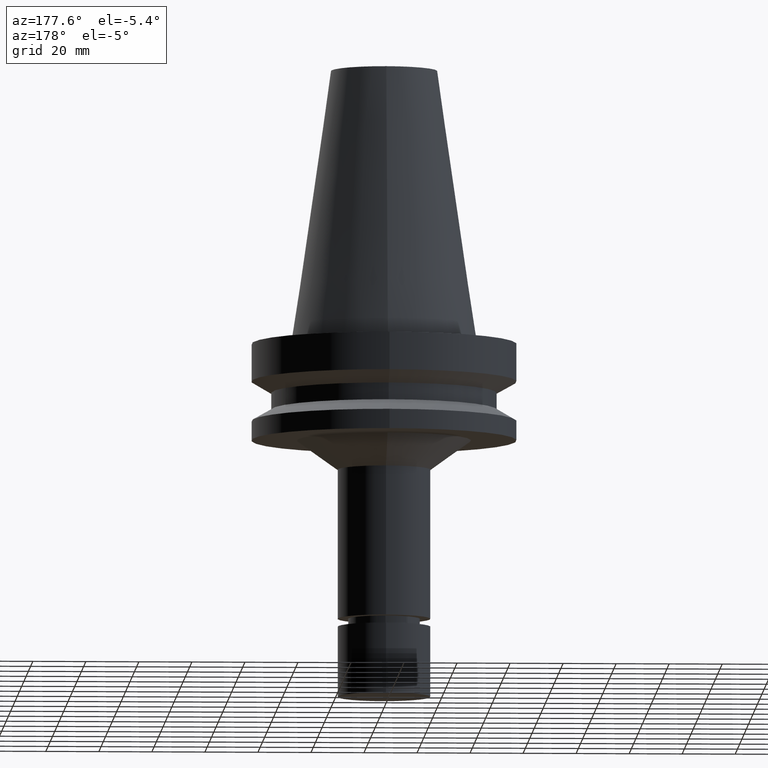
[diagram: clean part render]
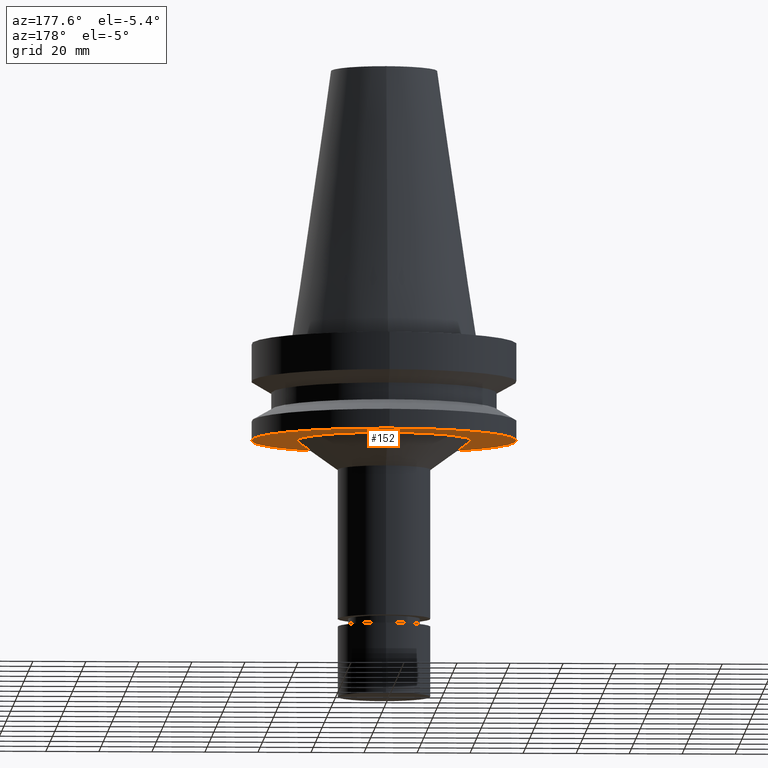
[diagram: same view with one face highlighted and labeled with its STEP entity id]
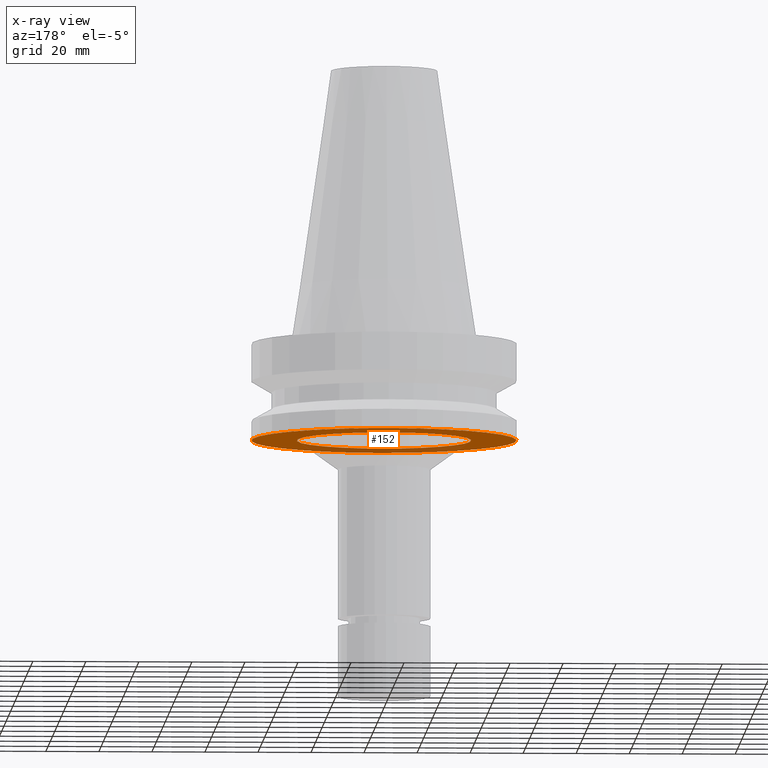
[diagram: x-ray of the same camera — body ghosted, the highlighted face saturated]
A machine part, auxiliary view. The second image highlights one B-rep face of the part: STEP entity #152.
The next image is the same camera in x-ray: the body ghosted, the highlighted face saturated — about 24% of this face is hidden behind the body in this view.
In plain terms, the highlighted planar face has unit normal (0, 0, -1).
Its self-contained STEP definition (entity closure, byte-faithful):
#132=EDGE_CURVE('Unnamed[1]',#289,#289,#290,.T.);
#152=ADVANCED_FACE('Unnamed[1]',(#318,#319),#320,.T.);
#156=EDGE_CURVE('Unnamed[1]',#325,#325,#326,.T.);
#289=VERTEX_POINT('',#486);
#290=CIRCLE('',#487,50.0);
#318=FACE_OUTER_BOUND('',#521,.T.);
#319=FACE_BOUND('',#522,.T.);
#320=PLANE('',#523);
#325=VERTEX_POINT('',#530);
#326=CIRCLE('',#531,32.8637797684183);
#486=CARTESIAN_POINT('',(2.32682891837996E-015,50.0,-37.9999999999998));
#487=AXIS2_PLACEMENT_3D('',#678,#679,#680);
#521=EDGE_LOOP('',(#709));
#522=EDGE_LOOP('',(#710));
#523=AXIS2_PLACEMENT_3D('',#711,#712,#713);
#530=CARTESIAN_POINT('',(2.32682891837996E-015,32.8637797684183,-37.9999999999998));
#531=AXIS2_PLACEMENT_3D('',#717,#718,#719);
#678=CARTESIAN_POINT('',(2.32682891837996E-015,1.51595204833261E-014,-37.9999999999998));
#679=DIRECTION('',(-6.12323399573677E-017,-1.52619998477336E-017,1.0));
#680=DIRECTION('',(-5.76168069387474E-033,1.0,1.52619998477336E-017));
#709=ORIENTED_EDGE('',*,*,#132,.F.);
#710=ORIENTED_EDGE('',*,*,#156,.T.);
#711=CARTESIAN_POINT('',(2.32682891837996E-015,41.4318898842092,-37.9999999999998));
#712=DIRECTION('',(6.12323399573677E-017,3.02497123217886E-015,-1.0));
#713=DIRECTION('',(1.90053219580803E-031,-1.0,-3.02497123217886E-015));
#717=CARTESIAN_POINT('',(2.32682891837996E-015,1.51595204833261E-014,-37.9999999999998));
#718=DIRECTION('',(-6.12323399573677E-017,-1.52619998477336E-017,1.0));
#719=DIRECTION('',(-5.76168069387474E-033,1.0,1.52619998477336E-017));